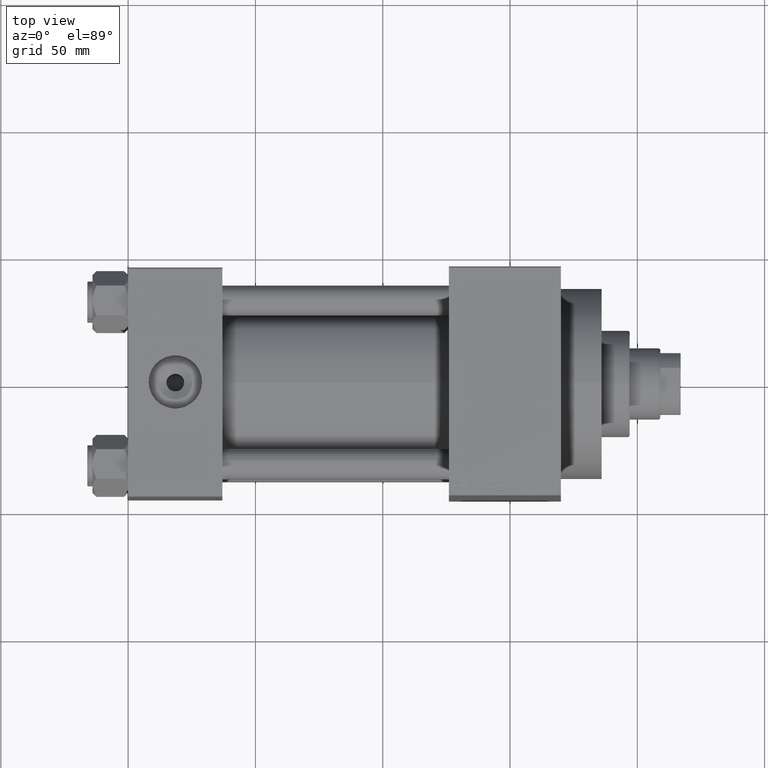
[diagram: clean part render]
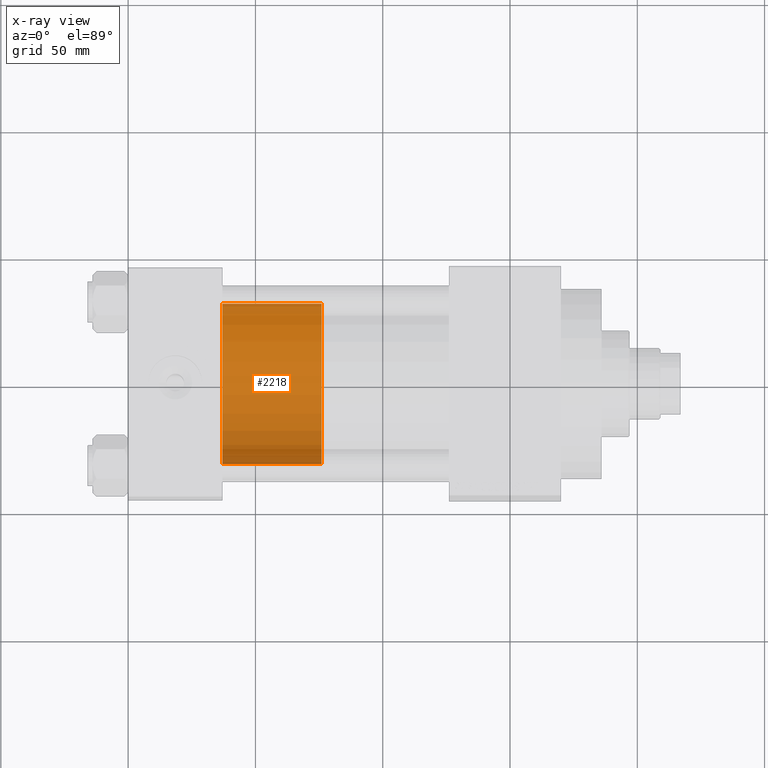
[diagram: x-ray — body ghosted, one internal face saturated and labeled with its STEP entity id]
A machine part, top view, then the same camera in x-ray: the body is ghosted and one INTERNAL B-rep face — a face not visible from any outside direction — is saturated and labeled: STEP entity #2218.
In plain terms, the highlighted cylindrical surface (partial cylindrical patch) has radius 31.5 mm, axis along (-1, 0, 0).
Its self-contained STEP definition (entity closure, byte-faithful):
#781 = EDGE_LOOP ( 'NONE', ( #24662, #41920, #1156, #28936 ) ) ;
#948 = CARTESIAN_POINT ( 'NONE',  ( 31.50000000000000000, 3.857637417314162689E-15, 0.000000000000000000 ) ) ;
#1156 = ORIENTED_EDGE ( 'NONE', *, *, #37632, .T. ) ;
#1281 = EDGE_CURVE ( 'NONE', #1457, #31300, #7819, .T. ) ;
#1457 = VERTEX_POINT ( 'NONE', #14985 ) ;
#1742 = AXIS2_PLACEMENT_3D ( 'NONE', #39258, #42833, #20793 ) ;
#1756 = CARTESIAN_POINT ( 'NONE',  ( -31.50000000000000000, 0.000000000000000000, 0.000000000000000000 ) ) ;
#2009 = CARTESIAN_POINT ( 'NONE',  ( -31.50000000000000000, 0.000000000000000000, 39.00000000000000000 ) ) ;
#2218 = ADVANCED_FACE ( 'NONE', ( #13677 ), #46751, .T. ) ;
#4305 = EDGE_CURVE ( 'NONE', #22437, #38897, #12709, .T. ) ;
#7819 = LINE ( 'NONE', #39987, #18462 ) ;
#12709 = LINE ( 'NONE', #27345, #21603 ) ;
#13677 = FACE_OUTER_BOUND ( 'NONE', #781, .T. ) ;
#14985 = CARTESIAN_POINT ( 'NONE',  ( 31.50000000000000000, 3.857637417314162689E-15, 39.00000000000000000 ) ) ;
#18462 = VECTOR ( 'NONE', #29195, 1000.000000000000000 ) ;
#20793 = DIRECTION ( 'NONE',  ( 1.000000000000000000, 0.000000000000000000, 0.000000000000000000 ) ) ;
#21603 = VECTOR ( 'NONE', #35492, 1000.000000000000000 ) ;
#22437 = VERTEX_POINT ( 'NONE', #2009 ) ;
#24662 = ORIENTED_EDGE ( 'NONE', *, *, #44116, .F. ) ;
#26157 = AXIS2_PLACEMENT_3D ( 'NONE', #36232, #28310, #46989 ) ;
#26599 = DIRECTION ( 'NONE',  ( 0.000000000000000000, 0.000000000000000000, 1.000000000000000000 ) ) ;
#27345 = CARTESIAN_POINT ( 'NONE',  ( -31.50000000000000000, 0.000000000000000000, 39.00000000000000000 ) ) ;
#28310 = DIRECTION ( 'NONE',  ( -0.000000000000000000, -0.000000000000000000, -1.000000000000000000 ) ) ;
#28936 = ORIENTED_EDGE ( 'NONE', *, *, #4305, .F. ) ;
#29195 = DIRECTION ( 'NONE',  ( -0.000000000000000000, -0.000000000000000000, -1.000000000000000000 ) ) ;
#31054 = AXIS2_PLACEMENT_3D ( 'NONE', #45507, #26599, #41435 ) ;
#31300 = VERTEX_POINT ( 'NONE', #948 ) ;
#31836 = CIRCLE ( 'NONE', #31054, 31.50000000000000000 ) ;
#35427 = CIRCLE ( 'NONE', #1742, 31.50000000000000000 ) ;
#35492 = DIRECTION ( 'NONE',  ( -0.000000000000000000, -0.000000000000000000, -1.000000000000000000 ) ) ;
#36232 = CARTESIAN_POINT ( 'NONE',  ( 0.000000000000000000, 0.000000000000000000, 39.00000000000000000 ) ) ;
#37632 = EDGE_CURVE ( 'NONE', #31300, #38897, #35427, .T. ) ;
#38897 = VERTEX_POINT ( 'NONE', #1756 ) ;
#39258 = CARTESIAN_POINT ( 'NONE',  ( 0.000000000000000000, 0.000000000000000000, 0.000000000000000000 ) ) ;
#39987 = CARTESIAN_POINT ( 'NONE',  ( 31.50000000000000000, 3.857637417314162689E-15, 39.00000000000000000 ) ) ;
#41435 = DIRECTION ( 'NONE',  ( 1.000000000000000000, 0.000000000000000000, 0.000000000000000000 ) ) ;
#41920 = ORIENTED_EDGE ( 'NONE', *, *, #1281, .T. ) ;
#42833 = DIRECTION ( 'NONE',  ( 0.000000000000000000, 0.000000000000000000, 1.000000000000000000 ) ) ;
#44116 = EDGE_CURVE ( 'NONE', #1457, #22437, #31836, .T. ) ;
#45507 = CARTESIAN_POINT ( 'NONE',  ( 0.000000000000000000, 0.000000000000000000, 39.00000000000000000 ) ) ;
#46751 = CYLINDRICAL_SURFACE ( 'NONE', #26157, 31.50000000000000000 ) ;
#46989 = DIRECTION ( 'NONE',  ( -1.000000000000000000, 0.000000000000000000, 0.000000000000000000 ) ) ;